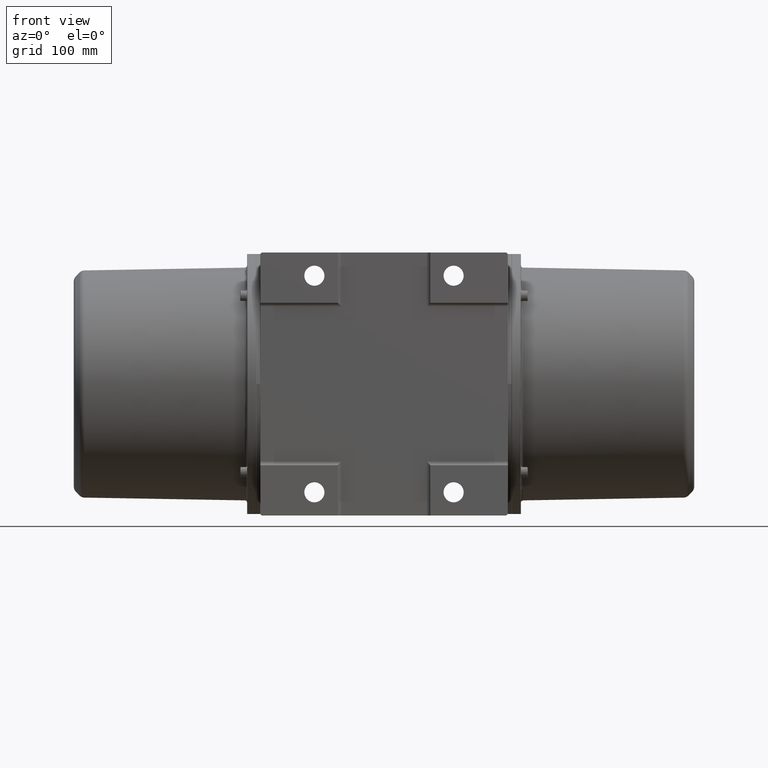
[diagram: clean part render]
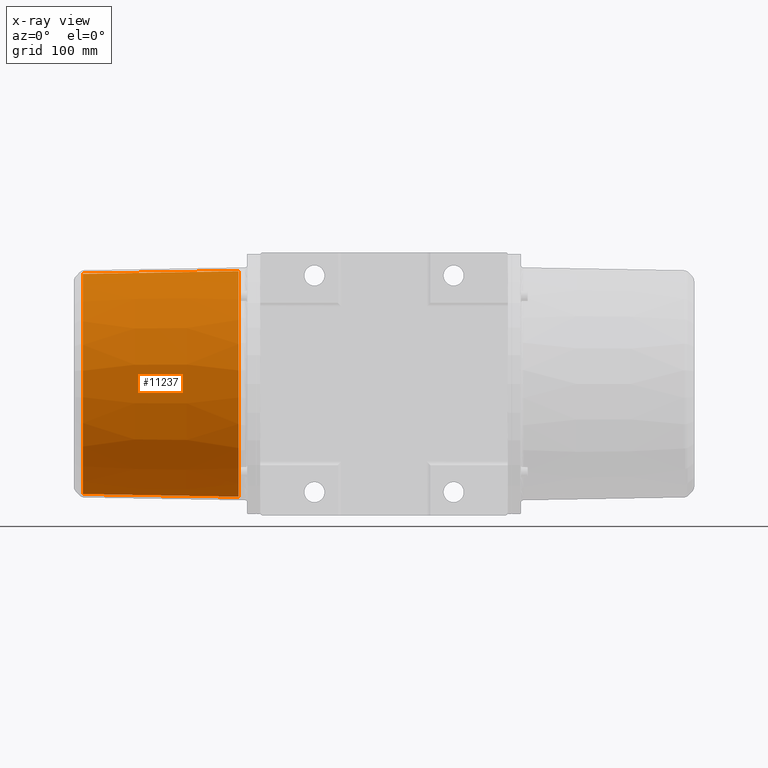
[diagram: x-ray — body ghosted, one internal face saturated and labeled with its STEP entity id]
A machine part, front view, then the same camera in x-ray: the body is ghosted and one INTERNAL B-rep face — a face not visible from any outside direction — is saturated and labeled: STEP entity #11237.
In plain terms, the highlighted conical surface has half-angle 1 deg.
Its self-contained STEP definition (entity closure, byte-faithful):
#2667 = LINE ( 'NONE', #5615, #2690 ) ;
#2690 = VECTOR ( 'NONE', #5639, 1000.000000000000200 ) ;
#2732 = CIRCLE ( 'NONE', #4893, 145.8073088095920000 ) ;
#3032 = LINE ( 'NONE', #6481, #3034 ) ;
#3034 = VECTOR ( 'NONE', #6483, 1000.000000000000200 ) ;
#3057 = CIRCLE ( 'NONE', #5023, 142.2978320826491900 ) ;
#4893 = AXIS2_PLACEMENT_3D ( 'NONE', #5711, #5733, #5736 ) ;
#4965 = ORIENTED_EDGE ( 'NONE', *, *, #41531, .F. ) ;
#4968 = ORIENTED_EDGE ( 'NONE', *, *, #41340, .T. ) ;
#4971 = ORIENTED_EDGE ( 'NONE', *, *, #41359, .T. ) ;
#4974 = ORIENTED_EDGE ( 'NONE', *, *, #41518, .F. ) ;
#5023 = AXIS2_PLACEMENT_3D ( 'NONE', #6504, #6520, #6523 ) ;
#5615 = CARTESIAN_POINT ( 'NONE',  ( -187.9996765234520000, -1.325260825006964000E-014, 145.8073088095920000 ) ) ;
#5639 = DIRECTION ( 'NONE',  ( 0.9998476951563912700, 1.396435115088534600E-016, 0.01745240643727969200 ) ) ;
#5711 = CARTESIAN_POINT ( 'NONE',  ( -187.9996765234519700, -3.110885365266529200E-014, -3.160526152824819800E-015 ) ) ;
#5733 = DIRECTION ( 'NONE',  ( 1.000000000000000000, 1.375271541924813800E-016, 1.374141805576009900E-016 ) ) ;
#5736 = DIRECTION ( 'NONE',  ( 1.903579171869537900E-016, 0.0000000000000000000, -1.000000000000000000 ) ) ;
#6481 = CARTESIAN_POINT ( 'NONE',  ( -187.9996765234519700, -3.110885365266529200E-014, -145.8073088095920000 ) ) ;
#6483 = DIRECTION ( 'NONE',  ( 0.9998476951563912700, 1.375062081407701300E-016, -0.01745240643727941400 ) ) ;
#6504 = CARTESIAN_POINT ( 'NONE',  ( -389.0574635540984900, -5.875975893122808400E-014, -3.078871720236574800E-014 ) ) ;
#6520 = DIRECTION ( 'NONE',  ( 1.000000000000000000, 1.375271541924813800E-016, 1.374141805576009900E-016 ) ) ;
#6523 = DIRECTION ( 'NONE',  ( 0.0000000000000000000, 0.0000000000000000000, -1.000000000000000000 ) ) ;
#7944 = CARTESIAN_POINT ( 'NONE',  ( -187.9996765234520000, -1.325260825006964000E-014, 145.8073088095920000 ) ) ;
#7964 = CARTESIAN_POINT ( 'NONE',  ( -187.9996765234519700, -3.110885365266529200E-014, -145.8073088095920000 ) ) ;
#9236 = CARTESIAN_POINT ( 'NONE',  ( -389.0574635540984900, -5.875975893122808400E-014, -142.2978320826492500 ) ) ;
#9532 = CARTESIAN_POINT ( 'NONE',  ( -389.0574635540984900, -4.133330047266570000E-014, 142.2978320826491400 ) ) ;
#11237 = ADVANCED_FACE ( 'NONE', ( #59867 ), #59870, .F. ) ;
#19274 = VERTEX_POINT ( 'NONE', #7944 ) ;
#19289 = VERTEX_POINT ( 'NONE', #7964 ) ;
#28341 = VERTEX_POINT ( 'NONE', #9236 ) ;
#28609 = VERTEX_POINT ( 'NONE', #9532 ) ;
#38227 = EDGE_LOOP ( 'NONE', ( #4965, #4968, #4971, #4974 ) ) ;
#41340 = EDGE_CURVE ( 'NONE', #28609, #19274, #2667, .T. ) ;
#41359 = EDGE_CURVE ( 'NONE', #19274, #19289, #2732, .T. ) ;
#41518 = EDGE_CURVE ( 'NONE', #28341, #19289, #3032, .T. ) ;
#41531 = EDGE_CURVE ( 'NONE', #28609, #28341, #3057, .T. ) ;
#58533 = AXIS2_PLACEMENT_3D ( 'NONE', #61398, #61390, #61389 ) ;
#59867 = FACE_OUTER_BOUND ( 'NONE', #38227, .T. ) ;
#59870 = CONICAL_SURFACE ( 'NONE', #58533, 145.8073088095920000, 0.01745329251993933700 ) ;
#61389 = DIRECTION ( 'NONE',  ( 1.903579171869537900E-016, 0.0000000000000000000, -1.000000000000000000 ) ) ;
#61390 = DIRECTION ( 'NONE',  ( 1.000000000000000000, 1.375271541924813800E-016, 1.374141805576009900E-016 ) ) ;
#61398 = CARTESIAN_POINT ( 'NONE',  ( -187.9996765234519700, -3.110885365266529200E-014, -3.160526152824819800E-015 ) ) ;